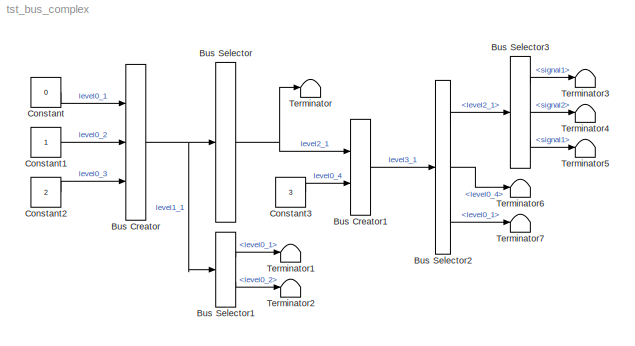
MODEL tst_bus_complex
KIND model
BLOCK [BusCreator] Bus Creator
  DisplayOption = bar
  Inputs = 3
  Ports = [3, 1]
  SID = 1
BLOCK [BusCreator] Bus Creator1
  DisplayOption = bar
  Inputs = 2
  Ports = [2, 1]
  SID = 16
BLOCK [BusSelector] Bus Selector
  OutputAsBus = on
  OutputSignals = level0_1,level0_2
  Ports = [1, 1]
  SID = 2
BLOCK [BusSelector] Bus Selector1
  OutputSignals = level0_1,level0_2
  Ports = [1, 2]
  SID = 12
BLOCK [BusSelector] Bus Selector2
  OutputSignals = level2_1,level0_4,level2_1.level0_1
  Ports = [1, 3]
  SID = 24
BLOCK [BusSelector] Bus Selector3
  OutputSignals = signal1,signal2,signal1
  Ports = [1, 3]
  SID = 25
BLOCK [Constant] Constant
  SID = 3
  Value = 0
BLOCK [Constant] Constant1
  SID = 7
BLOCK [Constant] Constant2
  SID = 18
  Value = 2
BLOCK [Constant] Constant3
  SID = 23
  Value = 3
BLOCK [Terminator] Terminator
  SID = 5
BLOCK [Terminator] Terminator1
  SID = 13
BLOCK [Terminator] Terminator2
  SID = 14
BLOCK [Terminator] Terminator3
  SID = 26
BLOCK [Terminator] Terminator4
  SID = 27
BLOCK [Terminator] Terminator5
  SID = 28
BLOCK [Terminator] Terminator6
  SID = 29
BLOCK [Terminator] Terminator7
  SID = 30
LINE Bus Creator1:1 -> Bus Selector2:1
NET Bus Creator:1 -> Bus Selector1:1, Bus Selector:1
LINE Bus Selector1:1 -> Terminator1:1
LINE Bus Selector1:2 -> Terminator2:1
LINE Bus Selector2:1 -> Bus Selector3:1
LINE Bus Selector2:2 -> Terminator6:1
LINE Bus Selector2:3 -> Terminator7:1
LINE Bus Selector3:1 -> Terminator3:1
LINE Bus Selector3:2 -> Terminator4:1
LINE Bus Selector3:3 -> Terminator5:1
NET Bus Selector:1 -> Bus Creator1:1, Terminator:1
LINE Constant1:1 -> Bus Creator:2
LINE Constant2:1 -> Bus Creator:3
LINE Constant3:1 -> Bus Creator1:2
LINE Constant:1 -> Bus Creator:1
note: NET lines group one-source signal fan-out (src -> all destinations, sorted); 1:1 wires keep LINE
